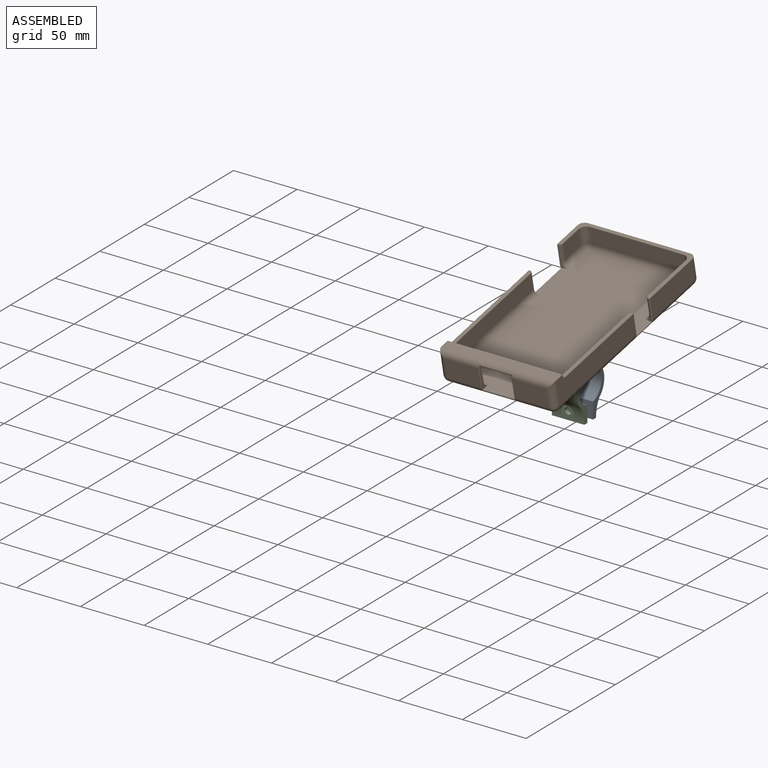
[diagram: assembled view]
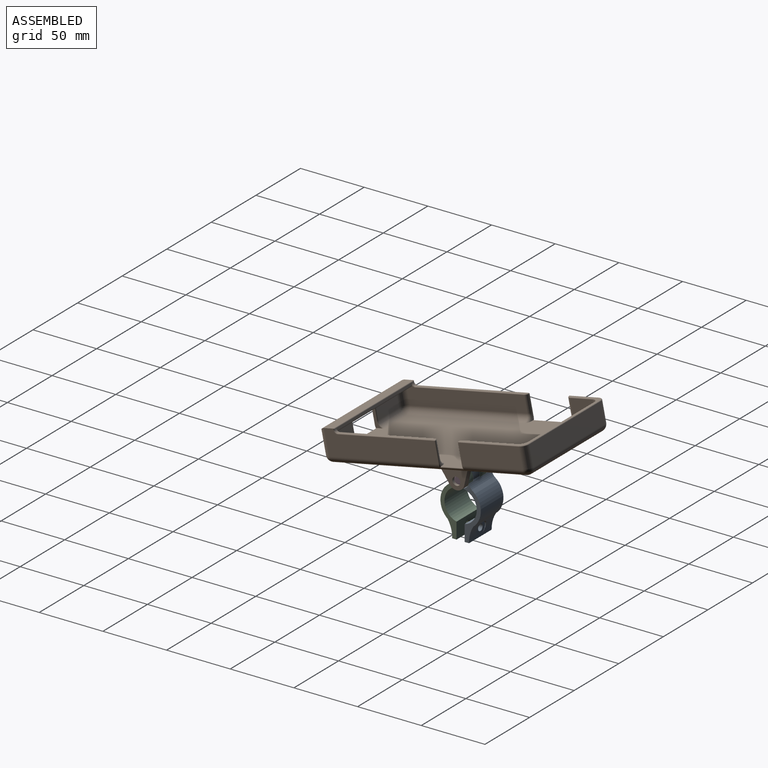
[diagram: assembled view, second angle]
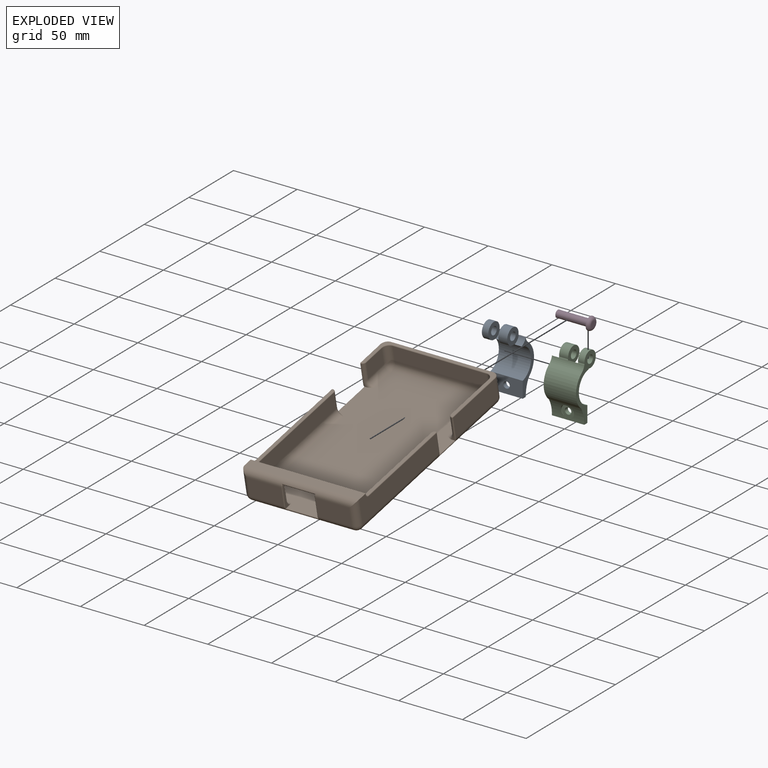
[diagram: exploded view]
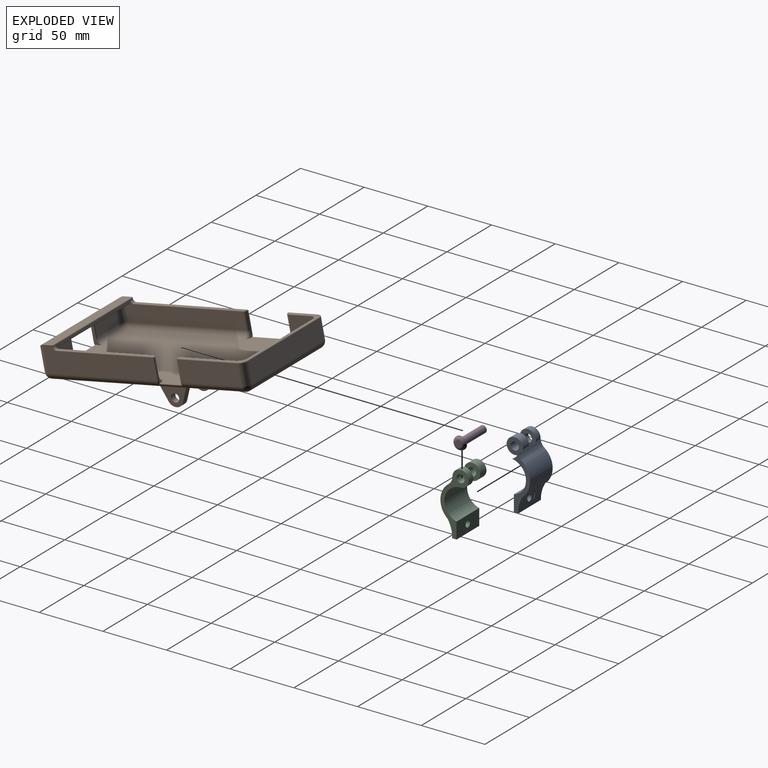
[diagram: exploded view, second angle]
ASSEMBLY  parts=4 mates=3
PART A: 30 faces, bbox 25.4x22.2x50.4 mm
  f0: cylinder r=6.35mm len=12.7mm, axis (1,0,0), area 156.7mm2, adj f1,f4,f22,f24
  f1: plane 50.4x22.23mm, normal (1,0,0), area 264.5mm2, adj f0,f2,f3,f5,f6,f8,f9,f10
  f2: cylinder r=6.35mm len=5.08mm, axis (1,0,0), area 7.5mm2, adj f1,f4,f6,f24
  f3: cylinder r=3.17mm len=6.35mm, axis (1,0,0), area 99.4mm2, adj f1,f4,f23
  f4: plane 12.87x12.83mm, normal (-1,0,0), area 97.7mm2, adj f0,f2,f3,f6,f7,f22,f23,f24
  f5: cylinder r=7.94mm len=25.4mm, axis (1,0,0), area 144.6mm2, adj f1,f7,f11,f12,f14,f21,f22
  f6: plane 5.08x0.35mm, normal (0,0.9,-0.44), area 2mm2, adj f1,f2,f4,f13
  f7: cylinder r=6.73mm len=7.81mm, axis (1,0,0), area 55.1mm2, adj f4,f5,f13,f15
  f8: plane 25.4x12.7mm, normal (0,1,0), area 302.3mm2, adj f1,f9,f12,f13,f27
  f9: plane 25.4x3.43mm, normal (0,0,-1), area 87.2mm2, adj f1,f8,f10,f12
  f10: cylinder r=22.86mm len=25.4mm, axis (1,0,0), area 254.6mm2, adj f1,f9,f11,f12,f28,f29
  f11: cylinder r=15.88mm len=25.4mm, axis (1,0,0), area 731.2mm2, adj f1,f5,f10,f12
  f12: plane 42.39x14.06mm, normal (-1,0,0), area 166.8mm2, adj f5,f8,f9,f10,f11,f13,f14
  f13: cylinder r=12.7mm len=25.4mm, axis (1,0,0), area 885.6mm2, adj f1,f6,f7,f8,f12,f14,f17
  f14: cylinder r=6.73mm len=5.46mm, axis (1,0,0), area 38.6mm2, adj f5,f12,f13,f16
  f15: plane 12.87x12.83mm, normal (1,0,0), area 97.7mm2, adj f7,f17,f18,f19,f20,f21,f25,f26
  f16: plane 12.87x12.83mm, normal (-1,0,0), area 97.7mm2, adj f14,f17,f18,f19,f20,f21,f25,f26
  f17: plane 7.05x0.35mm, normal (0,0.9,-0.44), area 2.7mm2, adj f13,f15,f16,f20
  f18: cylinder r=6.35mm len=12.7mm, axis (1,0,0), area 217.4mm2, adj f15,f16,f21,f26
  f19: cylinder r=3.17mm len=7.05mm, axis (1,0,0), area 137.9mm2, adj f15,f16,f25
  f20: cylinder r=6.35mm len=7.05mm, axis (1,0,0), area 10.4mm2, adj f15,f16,f17,f26
  f21: plane 7.05x0.55mm, normal (0,-0.9,0.44), area 4.3mm2, adj f5,f15,f16,f18
  f22: plane 5.08x0.55mm, normal (0,-0.9,0.44), area 3.1mm2, adj f0,f1,f4,f5
  f23: plane 5.08x0.38mm, normal (0,0,1), area 1.9mm2, adj f1,f3,f4
  f24: plane 5.08x0.38mm, normal (0,0,-1), area 1.9mm2, adj f0,f1,f2,f4
  f25: plane 7.05x0.38mm, normal (0,0,1), area 2.7mm2, adj f15,f16,f19
  f26: plane 7.05x0.38mm, normal (0,0,-1), area 2.7mm2, adj f15,f16,f18,f20
  f27: cylinder r=2.54mm len=5.08mm, axis (0,1,0), area 54.8mm2, adj f8,f29
  f28: cylinder r=5.08mm len=10.16mm, axis (0,1,0), area 32.9mm2, adj f10,f29
  f29: plane 10.16x10.16mm, normal (0,-1,0), area 60.8mm2, adj f10,f27,f28
PART B: 137 faces, bbox 94.2x166.1x48.7 mm
  f0: plane 22.86x15.88mm, normal (-1,0,0), area 362.9mm2, adj f47,f52,f91,f97
  f1: plane 87.63x19.69mm, normal (1,0,0), area 1419.9mm2, adj f38,f50,f55,f116,f120,f122,f123
  f2: plane 26.67x14.61mm, normal (0,-1,0), area 389.5mm2, adj f51,f56,f57,f131
  f3: plane 23.5x13.34mm, normal (0,1,0), area 313.3mm2, adj f36,f41,f44,f134
  f4: plane 26.67x14.61mm, normal (0,-1,0), area 389.5mm2, adj f51,f55,f57,f128
  f5: plane 88.9x1.91mm, normal (0,0,1), area 168.6mm2, adj f82,f103,f106,f115
  f6: plane 77.47x1.91mm, normal (0,0,1), area 146.8mm2, adj f81,f110,f113,f120
  f7: plane 43.18x12.7mm, normal (-1,0,0), area 548.4mm2, adj f62,f63,f74,f92
  f8: plane 99.06x19.69mm, normal (-1,0,0), area 1601.4mm2, adj f38,f52,f56,f109,f115,f117,f119
  f9: plane 93.98x13.97mm, normal (1,0,0), area 1197.4mm2, adj f36,f41,f42,f78,f100,f103,f136
  f10: plane 88.9x52.71mm, normal (0,0,1), area 318.5mm2, adj f85,f86,f87,f88,f89,f90,f91,f92
  f11: plane 15.31x7.31mm, normal (0,0.91,-0.41), area 81.5mm2, adj f12,f15,f16,f70,f72,f83
  f12: cylinder r=6.35mm len=11.58mm, axis (1,0,0), area 69.4mm2, adj f11,f13,f15,f16
  f13: plane 15.31x7.31mm, normal (0,-0.91,-0.41), area 81.5mm2, adj f12,f15,f16,f69,f70,f83
  f14: cylinder r=3.17mm len=6.35mm, axis (1,0,0), area 95mm2, adj f15,f16
  f15: plane 25.11x18.73mm, normal (-1,0,0), area 274.5mm2, adj f11,f12,f13,f14,f70
  f16: plane 23.11x16.51mm, normal (1,0,0), area 220.9mm2, adj f11,f12,f13,f14,f83
  f17: plane 25.4x20.32mm, normal (0,0,-1), area 516.1mm2, adj f69,f72,f83,f84
  f18: plane 25.11x18.73mm, normal (1,0,0), area 274.5mm2, adj f19,f20,f21,f22,f71
  f19: plane 15.31x7.31mm, normal (0,-0.91,-0.41), area 81.5mm2, adj f18,f20,f23,f69,f71,f84
  f20: cylinder r=6.35mm len=11.58mm, axis (-1,0,0), area 69.4mm2, adj f18,f19,f21,f23
  f21: plane 15.31x7.31mm, normal (0,0.91,-0.41), area 81.5mm2, adj f18,f20,f23,f71,f72,f84
  f22: cylinder r=3.17mm len=6.35mm, axis (-1,0,0), area 95mm2, adj f18,f23
  f23: plane 23.11x16.51mm, normal (-1,0,0), area 220.9mm2, adj f19,f20,f21,f22,f84
  f24: plane 73.66x12.7mm, normal (0,-1,0), area 935.5mm2, adj f62,f65,f66,f87
  f25: plane 82.55x13.97mm, normal (-1,0,0), area 1052.3mm2, adj f36,f58,f61,f80,f107,f110,f136
  f26: plane 23.5x13.34mm, normal (0,1,0), area 313.3mm2, adj f36,f58,f59,f124
  f27: plane 48.26x15.88mm, normal (1,0,0), area 766.1mm2, adj f45,f50,f98,f104
  f28: plane 80.01x15.88mm, normal (0,1,0), area 1270.2mm2, adj f45,f46,f47,f93
  f29: plane 17.78x12.7mm, normal (1,0,0), area 225.8mm2, adj f65,f68,f76,f86
  f30: plane 154.94x80.01mm, normal (0,0,-1), area 10794.4mm2, adj f46,f50,f51,f52,f69,f70,f71,f72
  f31: plane 155.55x87.44mm, normal (0,0,1), area 11478.7mm2, adj f32,f33,f34,f35,f39,f40,f42,f44
  f32: plane 5.17x1.94mm, normal (0,-1,0), area 2.8mm2, adj f31,f75,f97,f99,f102
  f33: plane 5.17x1.94mm, normal (0,1,0), area 2.8mm2, adj f31,f77,f102,f105,f109
  f34: plane 5.17x1.94mm, normal (0,-1,0), area 2.8mm2, adj f31,f73,f104,f108,f111
  f35: plane 5.17x1.94mm, normal (0,1,0), area 2.8mm2, adj f31,f79,f111,f114,f116
  f36: plane 83.82x10.63mm, normal (0,0,-1), area 778.5mm2, adj f3,f9,f25,f26,f39,f40,f41,f58
  f37: plane 85.25x2.07mm, normal (0,1,0), area 160.6mm2, adj f100,f107,f121,f136
  f38: plane 90.17x6.99mm, normal (0,0,1), area 629.8mm2, adj f1,f8,f57,f121
  f39: plane 18.59x5mm, normal (-1,0,0), area 39.1mm2, adj f31,f36,f124,f125,f126,f127,f128,f130
  f40: plane 18.59x5mm, normal (1,0,0), area 39.1mm2, adj f31,f36,f127,f129,f131,f132,f133,f134
  f41: cylinder r=5.08mm len=13.34mm, axis (0,0,-1), area 106.4mm2, adj f3,f9,f36,f43
  f42: cylinder r=5.08mm len=93.98mm, axis (0,1,0), area 749.9mm2, adj f9,f31,f43,f77
  f43: sphere r=5.08mm, area 40.5mm2, adj f41,f42,f44
  f44: cylinder r=5.08mm len=23.5mm, axis (-1,0,0), area 187.5mm2, adj f3,f31,f43,f135
  f45: cylinder r=5.08mm len=15.88mm, axis (0,0,-1), area 126.7mm2, adj f27,f28,f48,f96
  f46: cylinder r=5.08mm len=80.01mm, axis (-1,0,0), area 638.5mm2, adj f28,f30,f48,f49
  f47: cylinder r=5.08mm len=15.88mm, axis (0,0,1), area 126.7mm2, adj f0,f28,f49,f90
  f48: sphere r=5.08mm, area 40.5mm2, adj f45,f46,f50
  f49: sphere r=5.08mm, area 40.5mm2, adj f46,f47,f52
  f50: cylinder r=5.08mm len=154.94mm, axis (0,1,0), area 1177.5mm2, adj f1,f27,f30,f48,f53,f108,f111,f114
  f51: cylinder r=5.08mm len=80.01mm, axis (1,0,0), area 556mm2, adj f2,f4,f30,f53,f54,f130,f132,f133
  f52: cylinder r=5.08mm len=154.94mm, axis (0,-1,0), area 1134.3mm2, adj f0,f8,f30,f49,f54,f99,f102,f105
  f53: sphere r=5.08mm, area 40.5mm2, adj f50,f51,f55
  f54: sphere r=5.08mm, area 40.5mm2, adj f51,f52,f56
  f55: cylinder r=5.08mm len=19.69mm, axis (0,0,1), area 142.3mm2, adj f1,f4,f53,f57
  f56: cylinder r=5.08mm len=19.69mm, axis (0,0,-1), area 142.3mm2, adj f2,f8,f54,f57
  f57: cylinder r=5.08mm len=90.17mm, axis (-1,0,0), area 607.7mm2, adj f2,f4,f38,f55,f56,f126,f127,f129
  f58: cylinder r=5.08mm len=13.34mm, axis (0,0,1), area 106.4mm2, adj f25,f26,f36,f60
  f59: cylinder r=5.08mm len=23.5mm, axis (-1,0,0), area 187.5mm2, adj f26,f31,f60,f125
  f60: sphere r=5.08mm, area 40.5mm2, adj f58,f59,f61
  f61: cylinder r=5.08mm len=82.55mm, axis (0,-1,0), area 658.7mm2, adj f25,f31,f60,f79
  f62: cylinder r=5.08mm len=12.7mm, axis (0,0,-1), area 101.3mm2, adj f7,f24,f64,f89
  f63: cylinder r=5.08mm len=43.18mm, axis (0,-1,0), area 344.6mm2, adj f7,f31,f64,f73
  f64: sphere r=5.08mm, area 40.5mm2, adj f62,f63,f66
  f65: cylinder r=5.08mm len=12.7mm, axis (0,0,1), area 101.3mm2, adj f24,f29,f67,f85
  f66: cylinder r=5.08mm len=73.66mm, axis (1,0,0), area 587.8mm2, adj f24,f31,f64,f67
  f67: sphere r=5.08mm, area 40.5mm2, adj f65,f66,f68
  f68: cylinder r=5.08mm len=17.78mm, axis (0,1,0), area 141.9mm2, adj f29,f31,f67,f75
  f69: cylinder r=5.08mm len=45.09mm, axis (-1,0,0), area 297.1mm2, adj f13,f17,f19,f30,f70,f71
  f70: cylinder r=5.08mm len=35.54mm, axis (0,-1,0), area 231.9mm2, adj f11,f13,f15,f30,f69,f72
  f71: cylinder r=5.08mm len=35.54mm, axis (0,-1,0), area 231.9mm2, adj f18,f19,f21,f30,f69,f72
  f72: cylinder r=5.08mm len=45.09mm, axis (1,0,0), area 297.1mm2, adj f11,f17,f21,f30,f70,f71
  f73: torus R=7.62mm, axis (0,-1,0), area 25.4mm2, adj f31,f34,f63,f74
  f74: cylinder r=2.54mm len=12.7mm, axis (0,0,1), area 50.7mm2, adj f7,f73,f95,f104
  f75: torus R=7.62mm, axis (0,1,0), area 25.4mm2, adj f31,f32,f68,f76
  f76: cylinder r=2.54mm len=12.7mm, axis (0,0,-1), area 50.7mm2, adj f29,f75,f88,f97
  f77: torus R=7.62mm, axis (0,1,0), area 25.4mm2, adj f31,f33,f42,f78
  f78: cylinder r=2.54mm len=12.7mm, axis (0,0,1), area 50.7mm2, adj f9,f77,f106,f109
  f79: torus R=7.62mm, axis (0,-1,0), area 25.4mm2, adj f31,f35,f61,f80
  f80: cylinder r=2.54mm len=12.7mm, axis (0,0,-1), area 50.7mm2, adj f25,f79,f113,f116
  f81: cylinder r=2.54mm len=2.54mm, axis (-1,0,0), area 7.6mm2, adj f6,f107,f121,f122
  f82: cylinder r=2.54mm len=2.54mm, axis (-1,0,0), area 7.6mm2, adj f5,f100,f117,f121
  f83: cylinder r=2.54mm len=25.4mm, axis (0,1,0), area 98mm2, adj f11,f13,f16,f17
  f84: cylinder r=2.54mm len=25.4mm, axis (0,-1,0), area 98mm2, adj f17,f19,f21,f23
  f85: torus R=5.71mm, axis (0,0,1), area 8.3mm2, adj f10,f65,f86,f87
  f86: cylinder r=0.64mm len=17.78mm, axis (0,-1,0), area 17.7mm2, adj f10,f29,f85,f88
  f87: cylinder r=0.64mm len=73.66mm, axis (-1,0,0), area 73.5mm2, adj f10,f24,f85,f89
  f88: torus R=1.91mm, axis (0,0,1), area 3.6mm2, adj f10,f76,f86,f94
  f89: torus R=5.71mm, axis (0,0,1), area 8.3mm2, adj f10,f62,f87,f92
  f90: torus R=4.45mm, axis (0,0,1), area 7.6mm2, adj f10,f47,f91,f93
  f91: cylinder r=0.64mm len=22.86mm, axis (0,1,0), area 22.8mm2, adj f0,f10,f90,f94
  f92: cylinder r=0.64mm len=43.18mm, axis (0,1,0), area 43.1mm2, adj f7,f10,f89,f95
  f93: cylinder r=0.64mm len=80.01mm, axis (1,0,0), area 79.8mm2, adj f10,f28,f90,f96
  f94: sphere r=0.64mm, area 0.6mm2, adj f88,f91,f97
  f95: torus R=1.91mm, axis (0,0,1), area 3.6mm2, adj f10,f74,f92,f101
  f96: torus R=4.45mm, axis (0,0,1), area 7.6mm2, adj f10,f45,f93,f98
  f97: cylinder r=0.64mm len=15.88mm, axis (0,0,-1), area 15.8mm2, adj f0,f32,f76,f94,f99
  f98: cylinder r=0.64mm len=48.26mm, axis (0,-1,0), area 48.1mm2, adj f10,f27,f96,f101
  f99: torus R=4.45mm, axis (0,1,0), area 2.5mm2, adj f32,f52,f97,f102
  f100: torus R=3.17mm, axis (1,0,0), area 3.4mm2, adj f9,f37,f82,f103
  f101: sphere r=0.64mm, area 0.6mm2, adj f95,f98,f104
  f102: cylinder r=0.64mm len=33.02mm, axis (0,-1,0), area 44.4mm2, adj f31,f32,f33,f52,f99,f105
  f103: cylinder r=0.64mm len=87mm, axis (0,-1,0), area 86.8mm2, adj f5,f9,f100,f106
  f104: cylinder r=0.64mm len=15.88mm, axis (0,0,1), area 15.8mm2, adj f27,f34,f74,f101,f108
  f105: torus R=4.45mm, axis (0,1,0), area 2.5mm2, adj f33,f52,f102,f109
  f106: torus R=1.91mm, axis (0,0,1), area 3.6mm2, adj f5,f78,f103,f112
  f107: torus R=3.17mm, axis (1,0,0), area 3.4mm2, adj f25,f37,f81,f110
  f108: torus R=4.45mm, axis (0,-1,0), area 2.5mm2, adj f34,f50,f104,f111
  f109: cylinder r=0.64mm len=15.88mm, axis (0,0,1), area 15.8mm2, adj f8,f33,f78,f105,f112
  f110: cylinder r=0.64mm len=75.57mm, axis (0,1,0), area 75.4mm2, adj f6,f25,f107,f113
  f111: cylinder r=0.64mm len=19.05mm, axis (0,1,0), area 25.1mm2, adj f31,f34,f35,f50,f108,f114
  f112: sphere r=0.64mm, area 0.6mm2, adj f106,f109,f115
  f113: torus R=1.91mm, axis (0,0,1), area 3.6mm2, adj f6,f80,f110,f118
  f114: torus R=4.45mm, axis (0,-1,0), area 2.5mm2, adj f35,f50,f111,f116
  f115: cylinder r=0.64mm len=88.9mm, axis (0,1,0), area 88.7mm2, adj f5,f8,f112,f117
  f116: cylinder r=0.64mm len=15.88mm, axis (0,0,-1), area 15.8mm2, adj f1,f35,f80,f114,f118
  f117: torus R=3.17mm, axis (-1,0,0), area 4.3mm2, adj f8,f82,f115,f119
  f118: sphere r=0.64mm, area 0.6mm2, adj f113,f116,f120
  f119: cylinder r=0.64mm len=0.64mm, axis (0,0,-1), area 0.4mm2, adj f8,f117,f121
  f120: cylinder r=0.64mm len=77.47mm, axis (0,-1,0), area 77.3mm2, adj f1,f6,f118,f122
  f121: cylinder r=0.64mm len=90.17mm, axis (1,0,0), area 89.5mm2, adj f37,f38,f81,f82,f119,f123
  f122: torus R=3.17mm, axis (-1,0,0), area 4.3mm2, adj f1,f81,f120,f123
  f123: cylinder r=0.64mm len=0.64mm, axis (0,0,1), area 0.4mm2, adj f1,f121,f122
  f124: cylinder r=0.64mm len=13.34mm, axis (0,0,1), area 13.3mm2, adj f26,f36,f39,f125
  f125: torus R=5.71mm, axis (1,0,0), area 7mm2, adj f31,f39,f59,f124
  f126: torus R=4.45mm, axis (1,0,0), area 2.5mm2, adj f39,f57,f127,f128
  f127: cylinder r=0.64mm len=26.67mm, axis (-1,0,0), area 35.6mm2, adj f36,f39,f40,f57,f126,f129
  f128: cylinder r=0.64mm len=14.61mm, axis (0,0,-1), area 14.6mm2, adj f4,f39,f126,f130
  f129: torus R=4.45mm, axis (1,0,0), area 2.5mm2, adj f40,f57,f127,f131
  f130: torus R=4.45mm, axis (1,0,0), area 2.5mm2, adj f39,f51,f128,f132
  f131: cylinder r=0.64mm len=14.61mm, axis (0,0,1), area 14.6mm2, adj f2,f40,f129,f133
  f132: cylinder r=0.64mm len=26.67mm, axis (1,0,0), area 35.6mm2, adj f31,f39,f40,f51,f130,f133
  f133: torus R=4.45mm, axis (1,0,0), area 2.5mm2, adj f40,f51,f131,f132
  f134: cylinder r=0.64mm len=13.34mm, axis (0,0,-1), area 13.3mm2, adj f3,f36,f40,f135
  f135: torus R=5.71mm, axis (1,0,0), area 7mm2, adj f31,f40,f44,f134
  f136: cylinder r=0.64mm len=83.82mm, axis (-1,0,0), area 83.6mm2, adj f9,f25,f36,f37
PART C: same geometry as A
PART D: 5 faces, bbox 27.9x11x11 mm
  f0: cylinder r=2.79mm len=25.4mm, axis (1,0,0), area 445.9mm2, adj f1,f2
  f1: plane 5.59x5.59mm, normal (-1,0,0), area 24.5mm2, adj f0
  f2: plane 10.16x10.16mm, normal (-1,0,0), area 56.5mm2, adj f0,f4
  f3: plane 5.08x5.08mm, normal (1,0,0), area 20.3mm2, adj f4
  f4: torus R=2.54mm, axis (1,0,0), area 104.2mm2, adj f2,f3
PLACE A rot(axis=(0,0,-1),180deg) t=(-14.61,-36.6,-7.95)mm
PLACE B rot(axis=(1,0,0),11.6deg) t=(10.79,-32.76,-7.56)mm
PLACE C rot(axis=(1,0,0),0deg) t=(10.79,-36.6,-7.95)mm fixed
PLACE D rot(axis=(1,0,0),0deg) t=(10.79,-36.6,-7.95)mm
MATE revolute A.f3 <-> D.f0  axis (-1,0,0) through (-14.61,-36.6,11.1)mm
MATE revolute B.f14 <-> D.f0  axis (1,0,0) through (-14.61,-36.6,11.1)mm
MATE fastened C.f0 <-> D.f0  axis (1,0,0) through (10.79,-36.6,11.1)mm
